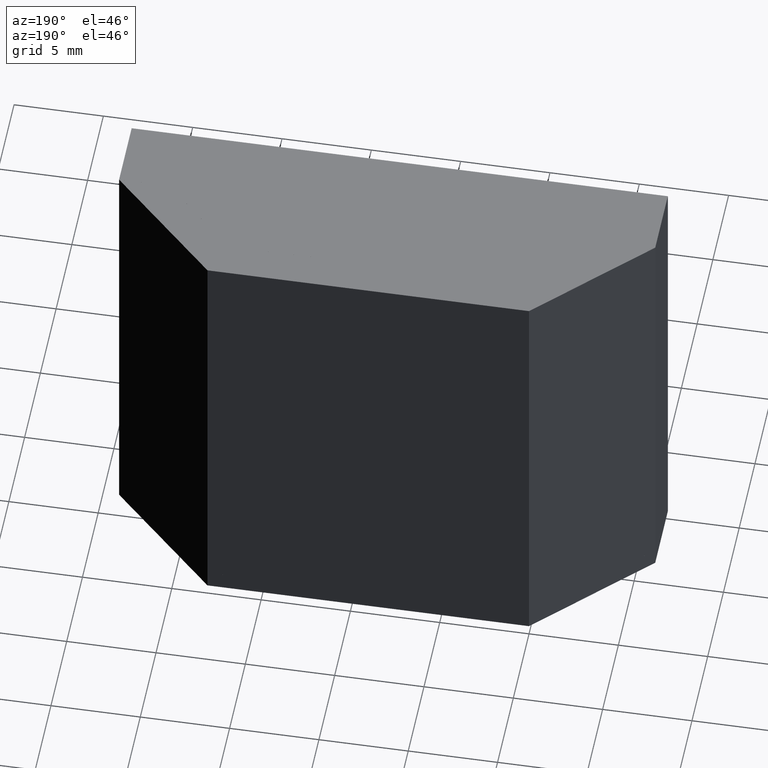
[diagram: clean part render]
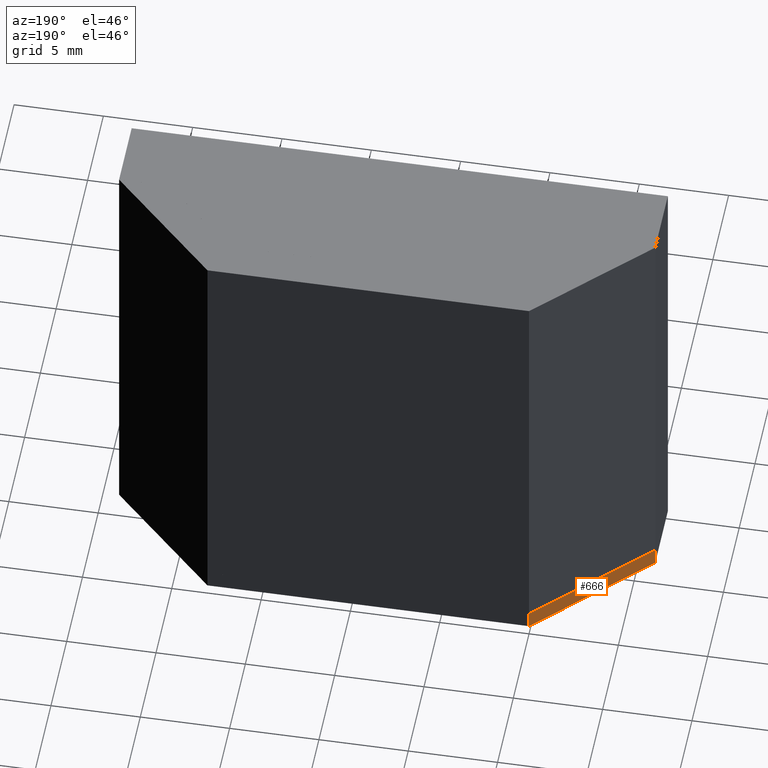
[diagram: same view with one face highlighted and labeled with its STEP entity id]
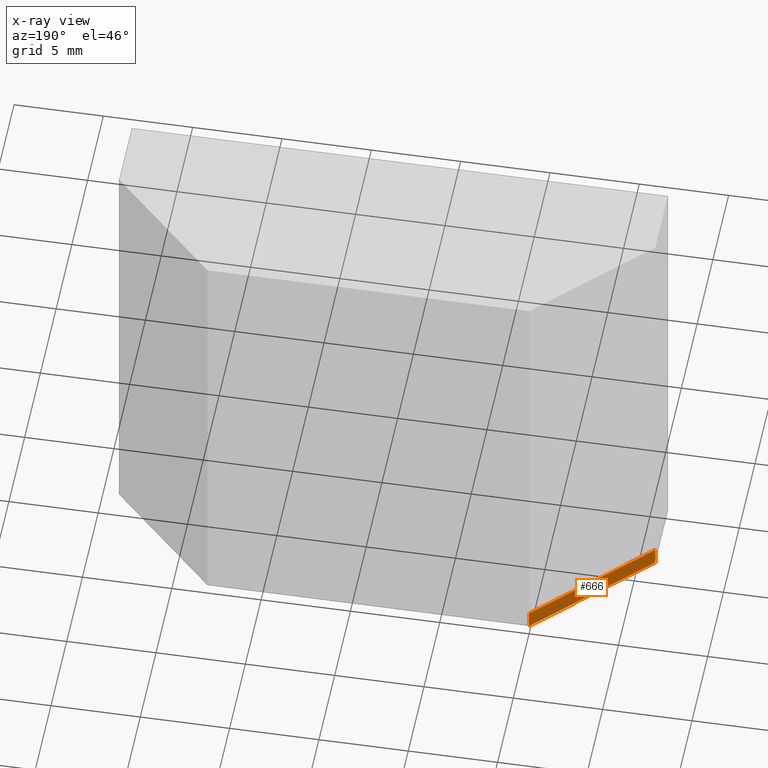
[diagram: x-ray of the same camera — body ghosted, the highlighted face saturated]
A machine part, auxiliary view. The second image highlights one B-rep face of the part: STEP entity #666.
The next image is the same camera in x-ray: the body ghosted, the highlighted face saturated — about 0% of this face is hidden behind the body in this view.
In plain terms, the highlighted planar face has unit normal (-0.7067, 0.7075, 0).
Its self-contained STEP definition (entity closure, byte-faithful):
#55=FACE_OUTER_BOUND('',#90,.T.);
#90=EDGE_LOOP('',(#507,#508,#509,#510));
#143=LINE('',#1031,#228);
#154=LINE('',#1051,#239);
#157=LINE('',#1058,#242);
#158=LINE('',#1059,#243);
#228=VECTOR('',#845,10.);
#239=VECTOR('',#862,10.);
#242=VECTOR('',#869,10.);
#243=VECTOR('',#870,10.);
#306=VERTEX_POINT('',#1028);
#307=VERTEX_POINT('',#1030);
#313=VERTEX_POINT('',#1049);
#315=VERTEX_POINT('',#1057);
#373=EDGE_CURVE('',#307,#306,#143,.T.);
#384=EDGE_CURVE('',#313,#306,#154,.T.);
#387=EDGE_CURVE('',#313,#315,#157,.T.);
#388=EDGE_CURVE('',#315,#307,#158,.T.);
#507=ORIENTED_EDGE('',*,*,#373,.T.);
#508=ORIENTED_EDGE('',*,*,#384,.F.);
#509=ORIENTED_EDGE('',*,*,#387,.T.);
#510=ORIENTED_EDGE('',*,*,#388,.T.);
#634=PLANE('',#767);
#666=ADVANCED_FACE('',(#55),#634,.T.);
#767=AXIS2_PLACEMENT_3D('',#1056,#867,#868);
#845=DIRECTION('',(0.707499563151495,0.706713780918728,-6.23172311106837E-31));
#862=DIRECTION('',(0.,0.,1.));
#867=DIRECTION('center_axis',(-0.706713780918728,0.707499563151495,0.));
#868=DIRECTION('ref_axis',(0.,0.,1.));
#869=DIRECTION('',(-0.707499563151495,-0.706713780918728,0.));
#870=DIRECTION('',(0.,0.,1.));
#1028=CARTESIAN_POINT('',(0.,0.,1.));
#1030=CARTESIAN_POINT('',(-6.0066712911562,-6.,1.));
#1031=CARTESIAN_POINT('',(-1.34694873400913,-1.34545274950432,1.));
#1049=CARTESIAN_POINT('',(0.,0.,0.));
#1051=CARTESIAN_POINT('',(0.,0.,0.));
#1056=CARTESIAN_POINT('Origin',(-6.0066712911562,-6.,0.));
#1057=CARTESIAN_POINT('',(-6.0066712911562,-6.,0.));
#1058=CARTESIAN_POINT('',(0.,0.,0.));
#1059=CARTESIAN_POINT('',(-6.0066712911562,-6.,0.));